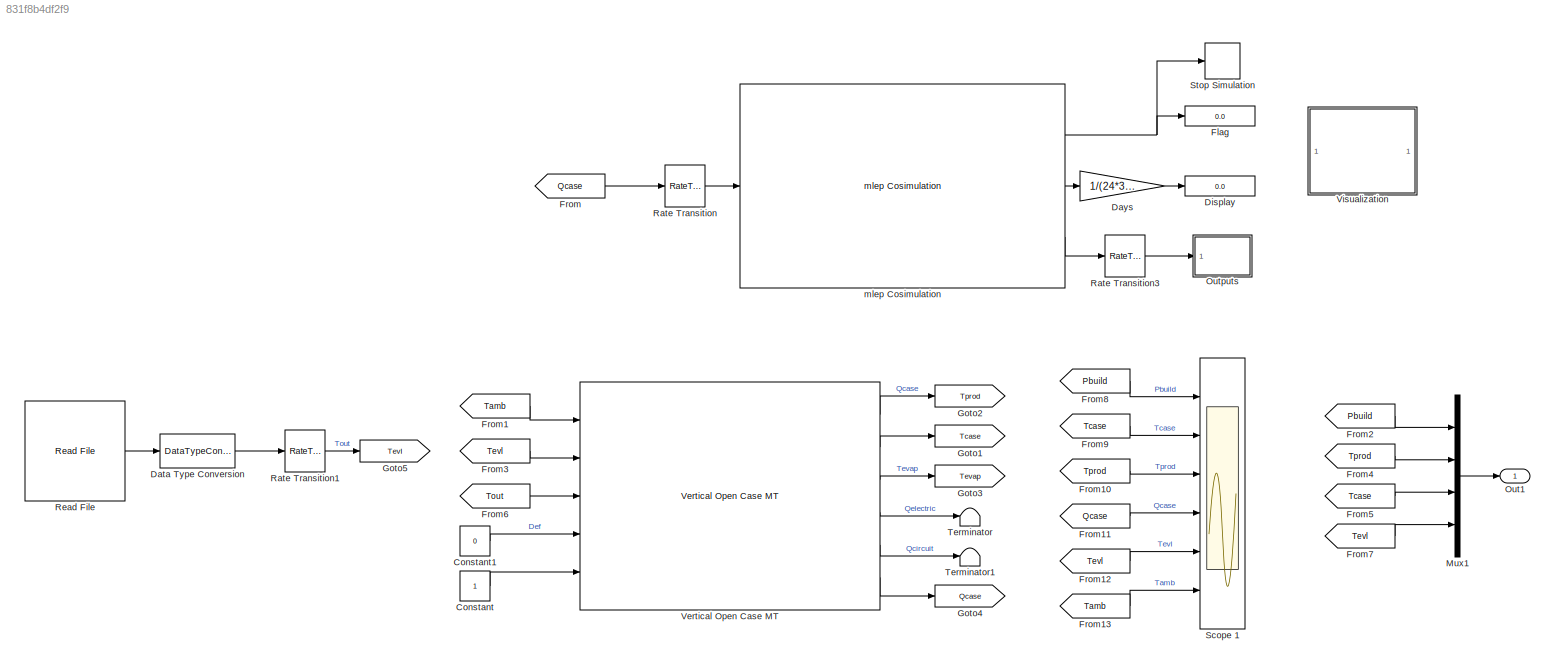
MODEL slx_831f8b4df2f9
KIND model
BLOCK [Constant] Constant
BLOCK [Constant] Constant1
  Value = 0
BLOCK [DataTypeConversion] Data Type Conversion
  RndMeth = Floor
  SaturateOnIntegerOverflow = off
BLOCK [Gain] Days
  Gain = 1/(24*3600)
  OutDataTypeStr = Inherit: Inherit via internal rule
  ParamDataTypeStr = Inherit: Inherit via internal rule
  SaturateOnIntegerOverflow = off
BLOCK [Display] Display
  Decimation = 1
  Ports = [1]
BLOCK [Display] Flag
  Decimation = 1
  Ports = [1]
BLOCK [From] From
  GotoTag = Qcase
  TagVisibility = global
BLOCK [From] From1
  GotoTag = Tamb
  TagVisibility = global
BLOCK [From] From10
  GotoTag = Tprod
  TagVisibility = global
BLOCK [From] From11
  GotoTag = Qcase
  TagVisibility = global
BLOCK [From] From12
  GotoTag = Tevl
  TagVisibility = global
BLOCK [From] From13
  GotoTag = Tamb
  TagVisibility = global
BLOCK [From] From2
  GotoTag = Pbuild
  TagVisibility = global
BLOCK [From] From3
  GotoTag = Tevl
  TagVisibility = global
BLOCK [From] From4
  GotoTag = Tprod
  TagVisibility = global
BLOCK [From] From5
  GotoTag = Tcase
  TagVisibility = global
BLOCK [From] From6
  GotoTag = Tout
  TagVisibility = global
BLOCK [From] From7
  GotoTag = Tevl
  TagVisibility = global
BLOCK [From] From8
  GotoTag = Pbuild
  TagVisibility = global
BLOCK [From] From9
  GotoTag = Tcase
  TagVisibility = global
BLOCK [Goto] Goto1
  GotoTag = Tcase
  TagVisibility = global
BLOCK [Goto] Goto2
  GotoTag = Tprod
  TagVisibility = global
BLOCK [Goto] Goto3
  GotoTag = Tevap
  TagVisibility = global
BLOCK [Goto] Goto4
  GotoTag = Qcase
  TagVisibility = global
BLOCK [Goto] Goto5
  GotoTag = Tevl
  TagVisibility = global
BLOCK [Mux] Mux1
  DisplayOption = bar
  Ports = [4, 1]
BLOCK [Outport] Out1
  IconDisplay = Port number
  InitialOutput = 0
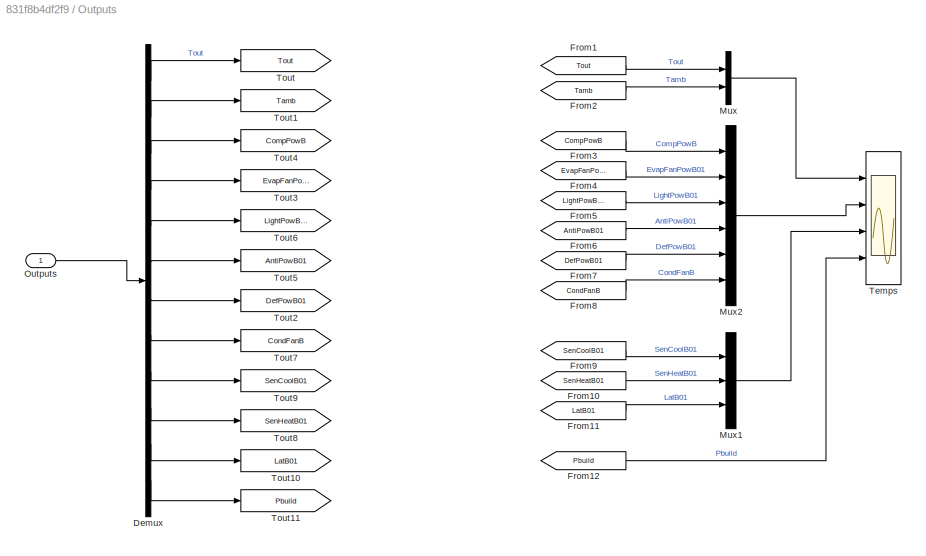
BLOCK [SubSystem] Outputs
  Ports = [1]
  RequestExecContextInheritance = off
BLOCK [Demux] Outputs/Demux
  DisplayOption = bar
  Outputs = 12
  Ports = [1, 12]
BLOCK [From] Outputs/From1
  GotoTag = Tout
  TagVisibility = global
BLOCK [From] Outputs/From10
  GotoTag = SenHeatB01
  TagVisibility = global
BLOCK [From] Outputs/From11
  GotoTag = LatB01
  TagVisibility = global
BLOCK [From] Outputs/From12
  GotoTag = Pbuild
  TagVisibility = global
BLOCK [From] Outputs/From2
  GotoTag = Tamb
  TagVisibility = global
BLOCK [From] Outputs/From3
  GotoTag = CompPowB
  TagVisibility = global
BLOCK [From] Outputs/From4
  GotoTag = EvapFanPowB01
  TagVisibility = global
BLOCK [From] Outputs/From5
  GotoTag = LightPowB01
  TagVisibility = global
BLOCK [From] Outputs/From6
  GotoTag = AntiPowB01
  TagVisibility = global
BLOCK [From] Outputs/From7
  GotoTag = DefPowB01
  TagVisibility = global
BLOCK [From] Outputs/From8
  GotoTag = CondFanB
  TagVisibility = global
BLOCK [From] Outputs/From9
  GotoTag = SenCoolB01
  TagVisibility = global
BLOCK [Mux] Outputs/Mux
  DisplayOption = bar
  Inputs = 2
  Ports = [2, 1]
BLOCK [Mux] Outputs/Mux1
  DisplayOption = bar
  Inputs = 3
  Ports = [3, 1]
BLOCK [Mux] Outputs/Mux2
  DisplayOption = bar
  Inputs = 6
  Ports = [6, 1]
BLOCK [Inport] Outputs/Outputs
  IconDisplay = Port number
BLOCK [Scope] Outputs/Temps
  DataFormat = StructureWithTime
  Floating = off
  LimitDataPoints = off
  NumInputPorts = 4
  Ports = [4]
  SampleTime = 0
  ShowLegends = on
  TimeRange = 90000
  YMax = 35~14000~2000~200000
  YMin = 0~0~-500~0
BLOCK [Goto] Outputs/Tout
  GotoTag = Tout
  TagVisibility = global
BLOCK [Goto] Outputs/Tout1
  GotoTag = Tamb
  TagVisibility = global
BLOCK [Goto] Outputs/Tout10
  GotoTag = LatB01
  TagVisibility = global
BLOCK [Goto] Outputs/Tout11
  GotoTag = Pbuild
  TagVisibility = global
BLOCK [Goto] Outputs/Tout2
  GotoTag = DefPowB01
  TagVisibility = global
BLOCK [Goto] Outputs/Tout3
  GotoTag = EvapFanPowB01
  TagVisibility = global
BLOCK [Goto] Outputs/Tout4
  GotoTag = CompPowB
  TagVisibility = global
BLOCK [Goto] Outputs/Tout5
  GotoTag = AntiPowB01
  TagVisibility = global
BLOCK [Goto] Outputs/Tout6
  GotoTag = LightPowB01
  TagVisibility = global
BLOCK [Goto] Outputs/Tout7
  GotoTag = CondFanB
  TagVisibility = global
BLOCK [Goto] Outputs/Tout8
  GotoTag = SenHeatB01
  TagVisibility = global
BLOCK [Goto] Outputs/Tout9
  GotoTag = SenCoolB01
  TagVisibility = global
BLOCK [RateTransition] Rate Transition
BLOCK [RateTransition] Rate Transition1
BLOCK [RateTransition] Rate Transition3
BLOCK [Reference] Read File  REF=refrigeration/Read File  (lib defined in slx_e5051c2510bc)
  Ports = [0, 1]
  SourceBlock = refrigeration/Read File
  SourceType = Read Input File
  filename = 'input.txt'
  timestep = 3600
BLOCK [Scope] Scope 1
  DataFormat = StructureWithTime
  Floating = off
  LegendLocations = 0.83475     0.92573     0.11799     0.02445\n0.84257     0.77048     0.11017     0.02445\n0.84257     0.61522     0.11017     0.02445\n0.84257     0.45874     0.11017     0.02445\n0.85039     0.30348     0.10235     0.02445\n0.85039       0.147     0.10235     0.02445
  LimitDataPoints = off
  NumInputPorts = 6
  Ports = [6]
  SampleTime = 0
  SaveName = ScopeData2
  ShowLegends = on
  TimeRange = 90000
  YMax = 200000~0~0~20000~0~20
  YMin = 0~-30~-30~-20000~-30~0
BLOCK [Stop] Stop Simulation
BLOCK [Terminator] Terminator
BLOCK [Terminator] Terminator1
BLOCK [Reference] Vertical Open Case MT  REF=refrigeration/Vertical Open Case MT  (lib defined in slx_e5051c2510bc)
  Ports = [5, 6]
  SourceBlock = refrigeration/Vertical Open Case MT
  SourceType = SubSystem
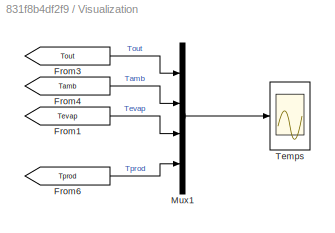
BLOCK [SubSystem] Visualization
  Ports = []
  RequestExecContextInheritance = off
BLOCK [From] Visualization/From1
  GotoTag = Tevap
  TagVisibility = global
BLOCK [From] Visualization/From3
  GotoTag = Tout
  TagVisibility = global
BLOCK [From] Visualization/From4
  GotoTag = Tamb
  TagVisibility = global
BLOCK [From] Visualization/From6
  GotoTag = Tprod
  TagVisibility = global
BLOCK [Mux] Visualization/Mux1
  DisplayOption = bar
  Ports = [4, 1]
BLOCK [Scope] Visualization/Temps
  DataFormat = StructureWithTime
  Floating = off
  LegendLocations = 0.84115     0.86307     0.11162    0.085083
  LimitDataPoints = off
  NumInputPorts = 1
  Ports = [1]
  SampleTime = 0
  SaveName = ScopeData1
  ShowLegends = on
  TimeRange = 90000
  YMax = 40
  YMin = -40
BLOCK [Reference] mlep Cosimulation  REF=refrigeration/mlep Cosimulation  (lib defined in slx_e5051c2510bc)
  Ports = [1, 3]
  SourceBlock = refrigeration/mlep Cosimulation
  SourceType = S-function: mlepCosim
  bcvtbpath = '<userpath>/Documents/Git/mlep_v2.0/MLE+/bcvtb'
  idf = 'supermarket_V810'
  numinput = 1
  numoutput = 12
  progname = 'runenergyplus'
  step = 300
  timeout = 2000
  weather = 'USA_FL_Miami.Intl.AP.722020_TMY3'
LINE Constant1:1 -> Vertical Open Case MT:4
LINE Constant:1 -> Vertical Open Case MT:5
LINE Data Type Conversion:1 -> Rate Transition1:1
LINE Days:1 -> Display:1
LINE From10:1 -> Scope 1:3
LINE From11:1 -> Scope 1:4
LINE From12:1 -> Scope 1:5
LINE From13:1 -> Scope 1:6
LINE From1:1 -> Vertical Open Case MT:1
LINE From2:1 -> Mux1:1
LINE From3:1 -> Vertical Open Case MT:2
LINE From4:1 -> Mux1:2
LINE From5:1 -> Mux1:3
LINE From6:1 -> Vertical Open Case MT:3
LINE From7:1 -> Mux1:4
LINE From8:1 -> Scope 1:1
LINE From9:1 -> Scope 1:2
LINE From:1 -> Rate Transition:1
LINE Mux1:1 -> Out1:1
LINE Outputs/Demux:1 -> Outputs/Tout:1
LINE Outputs/Demux:10 -> Outputs/Tout8:1
LINE Outputs/Demux:11 -> Outputs/Tout10:1
LINE Outputs/Demux:12 -> Outputs/Tout11:1
LINE Outputs/Demux:2 -> Outputs/Tout1:1
LINE Outputs/Demux:3 -> Outputs/Tout4:1
LINE Outputs/Demux:4 -> Outputs/Tout3:1
LINE Outputs/Demux:5 -> Outputs/Tout6:1
LINE Outputs/Demux:6 -> Outputs/Tout5:1
LINE Outputs/Demux:7 -> Outputs/Tout2:1
LINE Outputs/Demux:8 -> Outputs/Tout7:1
LINE Outputs/Demux:9 -> Outputs/Tout9:1
LINE Outputs/From10:1 -> Outputs/Mux1:2
LINE Outputs/From11:1 -> Outputs/Mux1:3
LINE Outputs/From12:1 -> Outputs/Temps:4
LINE Outputs/From1:1 -> Outputs/Mux:1
LINE Outputs/From2:1 -> Outputs/Mux:2
LINE Outputs/From3:1 -> Outputs/Mux2:1
LINE Outputs/From4:1 -> Outputs/Mux2:2
LINE Outputs/From5:1 -> Outputs/Mux2:3
LINE Outputs/From6:1 -> Outputs/Mux2:4
LINE Outputs/From7:1 -> Outputs/Mux2:5
LINE Outputs/From8:1 -> Outputs/Mux2:6
LINE Outputs/From9:1 -> Outputs/Mux1:1
LINE Outputs/Mux1:1 -> Outputs/Temps:3
LINE Outputs/Mux2:1 -> Outputs/Temps:2
LINE Outputs/Mux:1 -> Outputs/Temps:1
LINE Outputs/Outputs:1 -> Outputs/Demux:1
LINE Rate Transition1:1 -> Goto5:1
LINE Rate Transition3:1 -> Outputs:1
LINE Rate Transition:1 -> mlep Cosimulation:1
LINE Read File:1 -> Data Type Conversion:1
LINE Vertical Open Case MT:1 -> Goto2:1
LINE Vertical Open Case MT:2 -> Goto1:1
LINE Vertical Open Case MT:3 -> Goto3:1
LINE Vertical Open Case MT:4 -> Terminator:1
LINE Vertical Open Case MT:5 -> Terminator1:1
LINE Vertical Open Case MT:6 -> Goto4:1
LINE Visualization/From1:1 -> Visualization/Mux1:3
LINE Visualization/From3:1 -> Visualization/Mux1:1
LINE Visualization/From4:1 -> Visualization/Mux1:2
LINE Visualization/From6:1 -> Visualization/Mux1:4
LINE Visualization/Mux1:1 -> Visualization/Temps:1
NET mlep Cosimulation:1 -> Flag:1, Stop Simulation:1
LINE mlep Cosimulation:2 -> Days:1
LINE mlep Cosimulation:3 -> Rate Transition3:1
note: NET lines group one-source signal fan-out (src -> all destinations, sorted); 1:1 wires keep LINE
